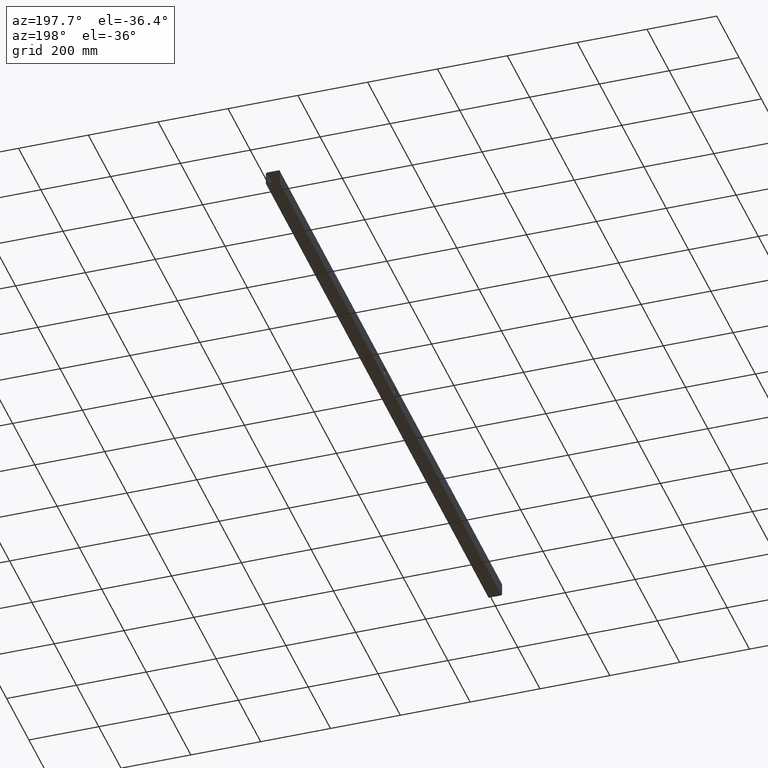
[diagram: clean part render]
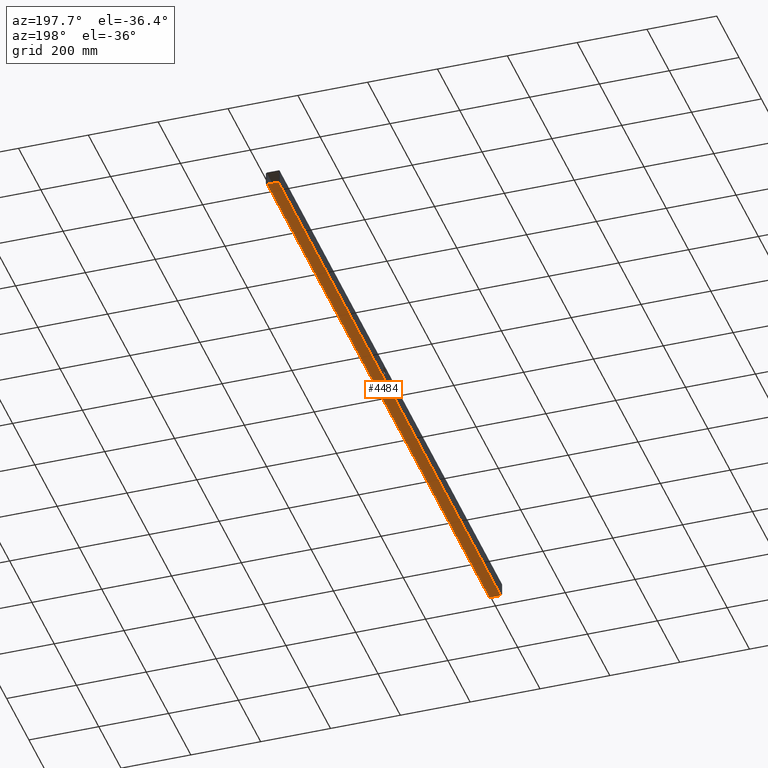
[diagram: same view with one face highlighted and labeled with its STEP entity id]
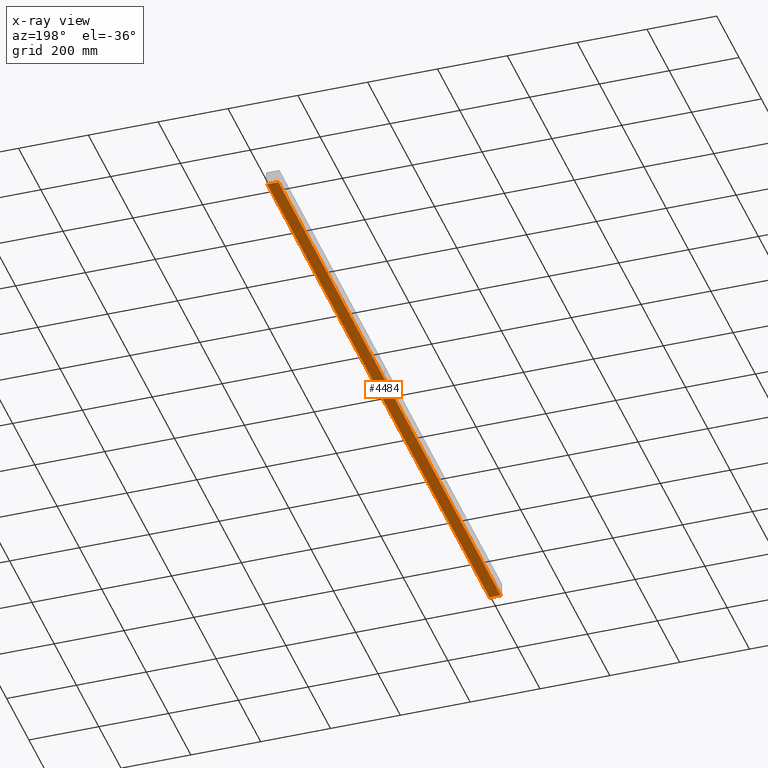
[diagram: x-ray of the same camera — body ghosted, the highlighted face saturated]
A machine part, auxiliary view. The second image highlights one B-rep face of the part: STEP entity #4484.
The next image is the same camera in x-ray: the body ghosted, the highlighted face saturated — about 0% of this face is hidden behind the body in this view.
In plain terms, the highlighted planar face has unit normal (0, 0, 1).
Its self-contained STEP definition (entity closure, byte-faithful):
#152 = VECTOR ( 'NONE', #4822, 1000.000000000000000 ) ;
#545 = VECTOR ( 'NONE', #6138, 1000.000000000000000 ) ;
#554 = CARTESIAN_POINT ( 'NONE',  ( -15.99999999999999645, 997.5000000000000000, -20.00000000000000355 ) ) ;
#885 = DIRECTION ( 'NONE',  ( -1.000000000000000000, -0.000000000000000000, -0.000000000000000000 ) ) ;
#1589 = ORIENTED_EDGE ( 'NONE', *, *, #12282, .F. ) ;
#1602 = ORIENTED_EDGE ( 'NONE', *, *, #9578, .T. ) ;
#1834 = LINE ( 'NONE', #3691, #152 ) ;
#2285 = PLANE ( 'NONE',  #6692 ) ;
#2805 = CARTESIAN_POINT ( 'NONE',  ( 16.00000000000000000, 997.5000000000000000, -20.00000000000000355 ) ) ;
#2819 = CARTESIAN_POINT ( 'NONE',  ( -15.99999999999999645, -997.5000000000000000, -20.00000000000000355 ) ) ;
#2912 = CARTESIAN_POINT ( 'NONE',  ( -15.99999999999999645, -997.5000000000000000, -20.00000000000000355 ) ) ;
#3505 = EDGE_LOOP ( 'NONE', ( #1602, #12054, #1589, #5968 ) ) ;
#3691 = CARTESIAN_POINT ( 'NONE',  ( -15.99999999999999645, 997.5000000000000000, -20.00000000000000355 ) ) ;
#3848 = VECTOR ( 'NONE', #9741, 1000.000000000000000 ) ;
#4318 = VERTEX_POINT ( 'NONE', #2912 ) ;
#4484 = ADVANCED_FACE ( 'NONE', ( #11051 ), #2285, .F. ) ;
#4822 = DIRECTION ( 'NONE',  ( -1.000000000000000000, -0.000000000000000000, -0.000000000000000000 ) ) ;
#5213 = DIRECTION ( 'NONE',  ( 1.000000000000000000, 0.000000000000000000, -0.000000000000000000 ) ) ;
#5895 = EDGE_CURVE ( 'NONE', #8936, #4318, #7176, .T. ) ;
#5968 = ORIENTED_EDGE ( 'NONE', *, *, #9814, .T. ) ;
#6138 = DIRECTION ( 'NONE',  ( -0.000000000000000000, -1.000000000000000000, -0.000000000000000000 ) ) ;
#6692 = AXIS2_PLACEMENT_3D ( 'NONE', #10225, #8164, #5213 ) ;
#6726 = CARTESIAN_POINT ( 'NONE',  ( 16.00000000000000000, -997.5000000000000000, -20.00000000000000355 ) ) ;
#6951 = LINE ( 'NONE', #2819, #11886 ) ;
#7176 = LINE ( 'NONE', #11966, #545 ) ;
#8164 = DIRECTION ( 'NONE',  ( 0.000000000000000000, 0.000000000000000000, 1.000000000000000000 ) ) ;
#8936 = VERTEX_POINT ( 'NONE', #554 ) ;
#9529 = VERTEX_POINT ( 'NONE', #6726 ) ;
#9578 = EDGE_CURVE ( 'NONE', #9529, #4318, #6951, .T. ) ;
#9741 = DIRECTION ( 'NONE',  ( -0.000000000000000000, -1.000000000000000000, -0.000000000000000000 ) ) ;
#9814 = EDGE_CURVE ( 'NONE', #10567, #9529, #10646, .T. ) ;
#10225 = CARTESIAN_POINT ( 'NONE',  ( -15.99999999999999645, 997.5000000000000000, -20.00000000000000355 ) ) ;
#10567 = VERTEX_POINT ( 'NONE', #10681 ) ;
#10646 = LINE ( 'NONE', #2805, #3848 ) ;
#10681 = CARTESIAN_POINT ( 'NONE',  ( 16.00000000000000000, 997.5000000000000000, -20.00000000000000355 ) ) ;
#11051 = FACE_OUTER_BOUND ( 'NONE', #3505, .T. ) ;
#11886 = VECTOR ( 'NONE', #885, 1000.000000000000000 ) ;
#11966 = CARTESIAN_POINT ( 'NONE',  ( -15.99999999999999645, 997.5000000000000000, -20.00000000000000355 ) ) ;
#12054 = ORIENTED_EDGE ( 'NONE', *, *, #5895, .F. ) ;
#12282 = EDGE_CURVE ( 'NONE', #10567, #8936, #1834, .T. ) ;